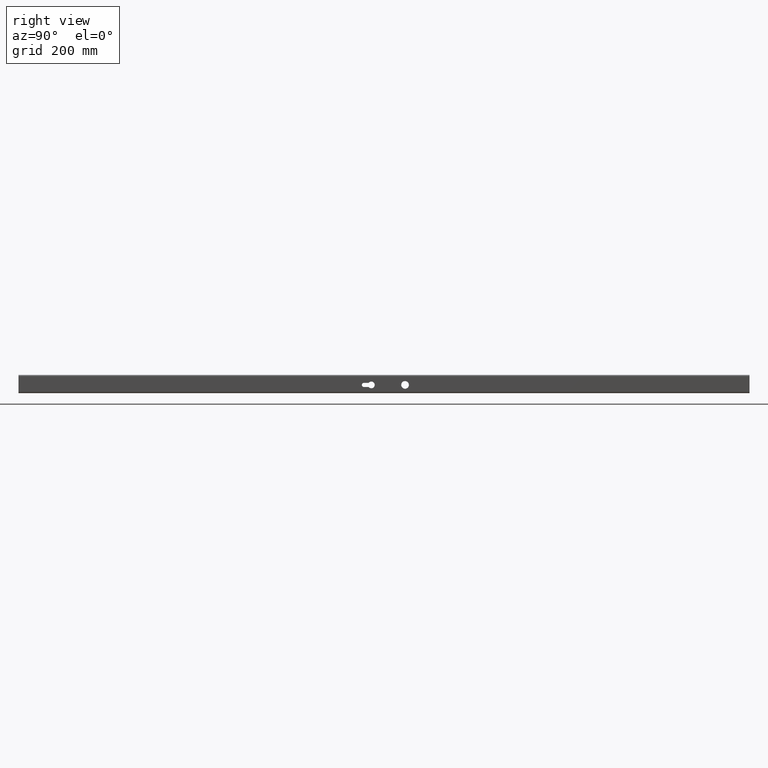
[diagram: clean part render]
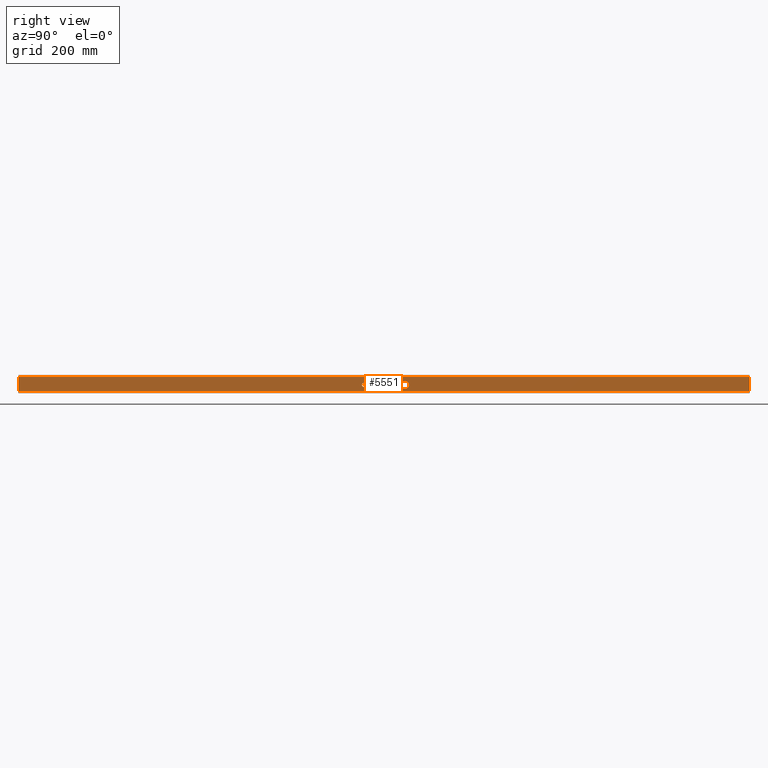
[diagram: same view with one face highlighted and labeled with its STEP entity id]
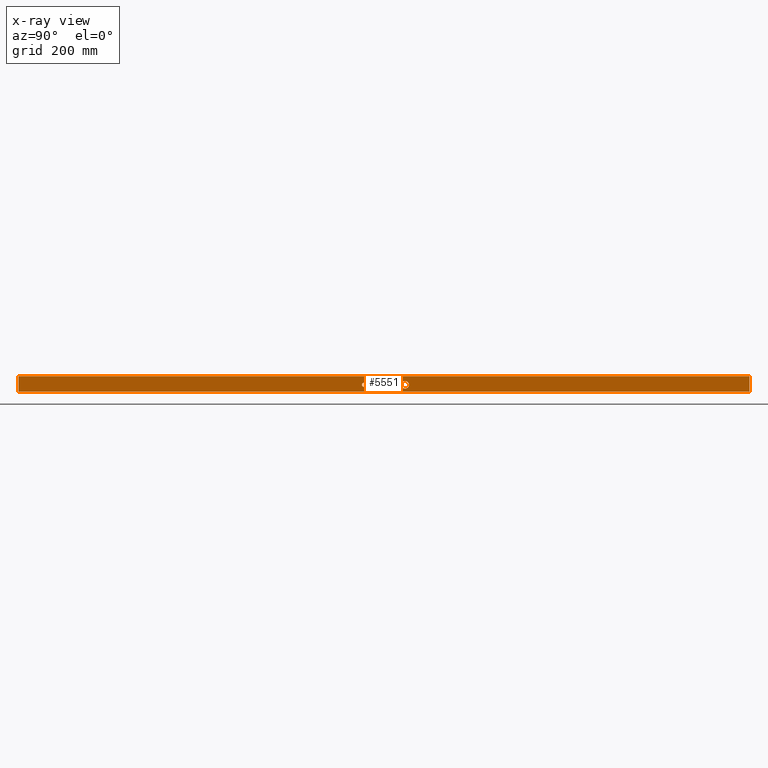
[diagram: x-ray of the same camera — body ghosted, the highlighted face saturated]
A machine part, right view. The second image highlights one B-rep face of the part: STEP entity #5551.
The next image is the same camera in x-ray: the body ghosted, the highlighted face saturated — about 0% of this face is hidden behind the body in this view.
In plain terms, the highlighted planar face has unit normal (-1, 0, 0).
Its self-contained STEP definition (entity closure, byte-faithful):
#209 = LINE ( 'NONE', #10999, #10870 ) ;
#365 = CIRCLE ( 'NONE', #12060, 5.650000000000002132 ) ;
#398 = DIRECTION ( 'NONE',  ( 1.000000000000000000, 0.000000000000000000, 0.000000000000000000 ) ) ;
#500 = EDGE_CURVE ( 'NONE', #2389, #2389, #12460, .T. ) ;
#832 = ORIENTED_EDGE ( 'NONE', *, *, #2138, .T. ) ;
#980 = CARTESIAN_POINT ( 'NONE',  ( 15.00000000000000000, 997.5000000000000000, -21.00000000000000355 ) ) ;
#1112 = LINE ( 'NONE', #980, #5786 ) ;
#1286 = LINE ( 'NONE', #7632, #11653 ) ;
#1404 = DIRECTION ( 'NONE',  ( 0.000000000000000000, 0.000000000000000000, -1.000000000000000000 ) ) ;
#1552 = FACE_OUTER_BOUND ( 'NONE', #2344, .T. ) ;
#1782 = DIRECTION ( 'NONE',  ( 0.000000000000000000, 0.000000000000000000, -1.000000000000000000 ) ) ;
#1875 = DIRECTION ( 'NONE',  ( -0.000000000000000000, -1.000000000000000000, -0.000000000000000000 ) ) ;
#2088 = DIRECTION ( 'NONE',  ( -8.260587980841940012E-17, -0.000000000000000000, -1.000000000000000000 ) ) ;
#2109 = EDGE_CURVE ( 'NONE', #6693, #5564, #11670, .T. ) ;
#2138 = EDGE_CURVE ( 'NONE', #12186, #2781, #1286, .T. ) ;
#2344 = EDGE_LOOP ( 'NONE', ( #4781, #9085, #2382, #832 ) ) ;
#2382 = ORIENTED_EDGE ( 'NONE', *, *, #5532, .F. ) ;
#2389 = VERTEX_POINT ( 'NONE', #3593 ) ;
#2503 = CARTESIAN_POINT ( 'NONE',  ( 15.00000000000000355, 57.50000000000010658, -2.500000000000005773 ) ) ;
#2767 = CARTESIAN_POINT ( 'NONE',  ( 14.99999999999999822, -997.5000000000000000, -21.00000000000000355 ) ) ;
#2781 = VERTEX_POINT ( 'NONE', #4028 ) ;
#2900 = AXIS2_PLACEMENT_3D ( 'NONE', #12645, #12681, #1782 ) ;
#2910 = ORIENTED_EDGE ( 'NONE', *, *, #2109, .F. ) ;
#2963 = CARTESIAN_POINT ( 'NONE',  ( 15.00000000000000355, -41.69722168617852276, 3.149999999999995026 ) ) ;
#3319 = VERTEX_POINT ( 'NONE', #4494 ) ;
#3593 = CARTESIAN_POINT ( 'NONE',  ( 15.00000000000000355, 57.50000000000010658, -13.00000000000001243 ) ) ;
#3929 = VERTEX_POINT ( 'NONE', #10827 ) ;
#3963 = DIRECTION ( 'NONE',  ( 8.260587980841940012E-17, 0.000000000000000000, 1.000000000000000000 ) ) ;
#3991 = CARTESIAN_POINT ( 'NONE',  ( 15.00000000000000355, -54.69999999999989626, 3.149999999999995470 ) ) ;
#4007 = PLANE ( 'NONE',  #11518 ) ;
#4028 = CARTESIAN_POINT ( 'NONE',  ( 15.00000000000000355, -997.5000000000000000, 20.99999999999998934 ) ) ;
#4085 = DIRECTION ( 'NONE',  ( -1.000000000000000000, 0.000000000000000000, 8.260587980841940012E-17 ) ) ;
#4494 = CARTESIAN_POINT ( 'NONE',  ( 14.99999999999999822, 997.5000000000000000, -21.00000000000000355 ) ) ;
#4781 = ORIENTED_EDGE ( 'NONE', *, *, #6076, .T. ) ;
#5100 = EDGE_CURVE ( 'NONE', #3319, #5861, #8714, .T. ) ;
#5163 = FACE_BOUND ( 'NONE', #8076, .T. ) ;
#5197 = DIRECTION ( 'NONE',  ( -0.000000000000000000, 1.000000000000000000, 2.668235101928752824E-16 ) ) ;
#5212 = CARTESIAN_POINT ( 'NONE',  ( 15.00000000000000355, 997.5000000000000000, 20.99999999999998934 ) ) ;
#5303 = LINE ( 'NONE', #3991, #9773 ) ;
#5304 = LINE ( 'NONE', #6861, #6552 ) ;
#5532 = EDGE_CURVE ( 'NONE', #12186, #3319, #1112, .T. ) ;
#5551 = ADVANCED_FACE ( 'NONE', ( #5163, #12552, #1552 ), #4007, .F. ) ;
#5564 = VERTEX_POINT ( 'NONE', #2963 ) ;
#5786 = VECTOR ( 'NONE', #2088, 1000.000000000000000 ) ;
#5861 = VERTEX_POINT ( 'NONE', #2767 ) ;
#6076 = EDGE_CURVE ( 'NONE', #2781, #5861, #5304, .T. ) ;
#6354 = DIRECTION ( 'NONE',  ( -0.000000000000000000, -1.000000000000000000, -0.000000000000000000 ) ) ;
#6520 = DIRECTION ( 'NONE',  ( 1.000000000000000000, 0.000000000000000000, 0.000000000000000000 ) ) ;
#6552 = VECTOR ( 'NONE', #7760, 1000.000000000000000 ) ;
#6565 = DIRECTION ( 'NONE',  ( 0.000000000000000000, 0.000000000000000000, -1.000000000000000000 ) ) ;
#6693 = VERTEX_POINT ( 'NONE', #10697 ) ;
#6861 = CARTESIAN_POINT ( 'NONE',  ( 15.00000000000000000, -997.5000000000000000, -21.00000000000000355 ) ) ;
#6877 = CARTESIAN_POINT ( 'NONE',  ( 14.99999999999999822, 997.5000000000000000, -21.00000000000000355 ) ) ;
#7632 = CARTESIAN_POINT ( 'NONE',  ( 15.00000000000000355, 997.5000000000000000, 20.99999999999998934 ) ) ;
#7760 = DIRECTION ( 'NONE',  ( -8.260587980841940012E-17, -0.000000000000000000, -1.000000000000000000 ) ) ;
#8076 = EDGE_LOOP ( 'NONE', ( #9107, #10707, #12063, #2910 ) ) ;
#8419 = VECTOR ( 'NONE', #1875, 1000.000000000000000 ) ;
#8714 = LINE ( 'NONE', #6877, #8419 ) ;
#8926 = CARTESIAN_POINT ( 'NONE',  ( 15.00000000000000355, -54.69999999999989626, 3.149999999999995470 ) ) ;
#8941 = DIRECTION ( 'NONE',  ( -0.000000000000000000, -1.000000000000000000, 6.670587754821882060E-17 ) ) ;
#9072 = EDGE_LOOP ( 'NONE', ( #12625 ) ) ;
#9085 = ORIENTED_EDGE ( 'NONE', *, *, #5100, .F. ) ;
#9107 = ORIENTED_EDGE ( 'NONE', *, *, #11417, .F. ) ;
#9654 = EDGE_CURVE ( 'NONE', #11209, #3929, #365, .T. ) ;
#9773 = VECTOR ( 'NONE', #8941, 1000.000000000000000 ) ;
#10279 = CARTESIAN_POINT ( 'NONE',  ( 15.00000000000000355, -54.69999999999989626, -2.500000000000005773 ) ) ;
#10697 = CARTESIAN_POINT ( 'NONE',  ( 15.00000000000000355, -41.69722168617852276, -8.150000000000002132 ) ) ;
#10707 = ORIENTED_EDGE ( 'NONE', *, *, #9654, .F. ) ;
#10827 = CARTESIAN_POINT ( 'NONE',  ( 15.00000000000000178, -54.69999999999997442, -8.150000000000007461 ) ) ;
#10870 = VECTOR ( 'NONE', #5197, 1000.000000000000000 ) ;
#10917 = CARTESIAN_POINT ( 'NONE',  ( 15.00000000000000000, 997.5000000000000000, -21.00000000000000355 ) ) ;
#10925 = AXIS2_PLACEMENT_3D ( 'NONE', #2503, #6520, #6565 ) ;
#10999 = CARTESIAN_POINT ( 'NONE',  ( 15.00000000000000355, -41.69722168617852276, -8.150000000000003908 ) ) ;
#11209 = VERTEX_POINT ( 'NONE', #8926 ) ;
#11417 = EDGE_CURVE ( 'NONE', #3929, #6693, #209, .T. ) ;
#11518 = AXIS2_PLACEMENT_3D ( 'NONE', #10917, #4085, #3963 ) ;
#11653 = VECTOR ( 'NONE', #6354, 1000.000000000000000 ) ;
#11670 = CIRCLE ( 'NONE', #2900, 9.149999999999998579 ) ;
#12051 = EDGE_CURVE ( 'NONE', #5564, #11209, #5303, .T. ) ;
#12060 = AXIS2_PLACEMENT_3D ( 'NONE', #10279, #398, #1404 ) ;
#12063 = ORIENTED_EDGE ( 'NONE', *, *, #12051, .F. ) ;
#12186 = VERTEX_POINT ( 'NONE', #5212 ) ;
#12460 = CIRCLE ( 'NONE', #10925, 10.50000000000000711 ) ;
#12552 = FACE_BOUND ( 'NONE', #9072, .T. ) ;
#12625 = ORIENTED_EDGE ( 'NONE', *, *, #500, .F. ) ;
#12645 = CARTESIAN_POINT ( 'NONE',  ( 15.00000000000000355, -34.49999999999989342, -2.500000000000005773 ) ) ;
#12681 = DIRECTION ( 'NONE',  ( 1.000000000000000000, 0.000000000000000000, 0.000000000000000000 ) ) ;